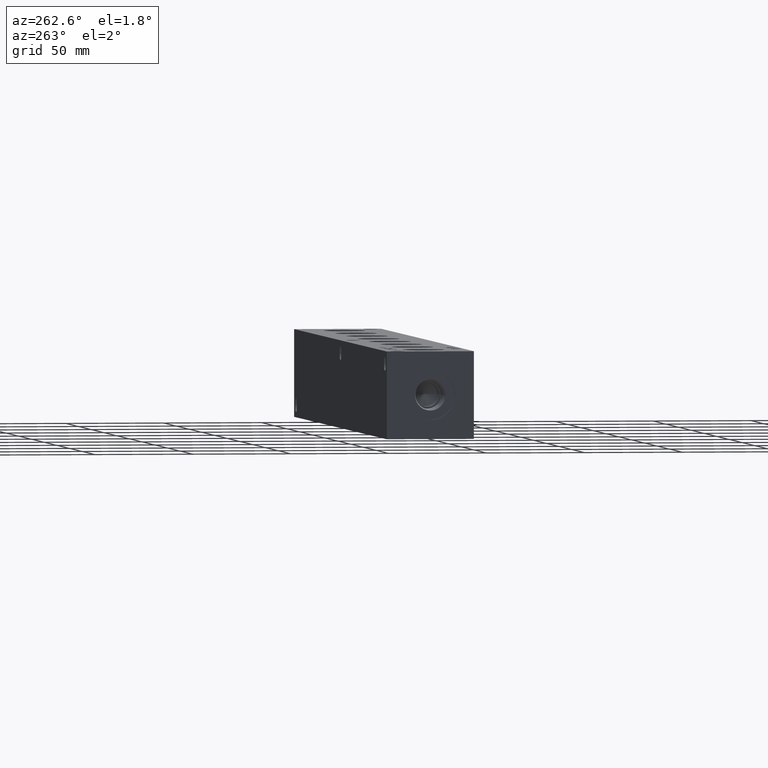
[diagram: clean part render]
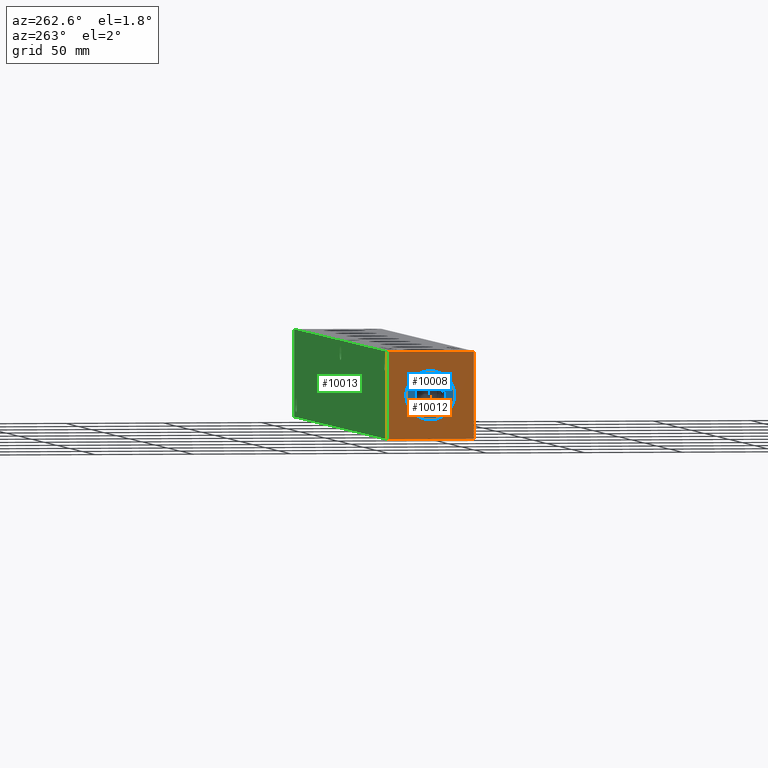
[diagram: same view with three faces highlighted in distinct colors, each labeled with its STEP entity id]
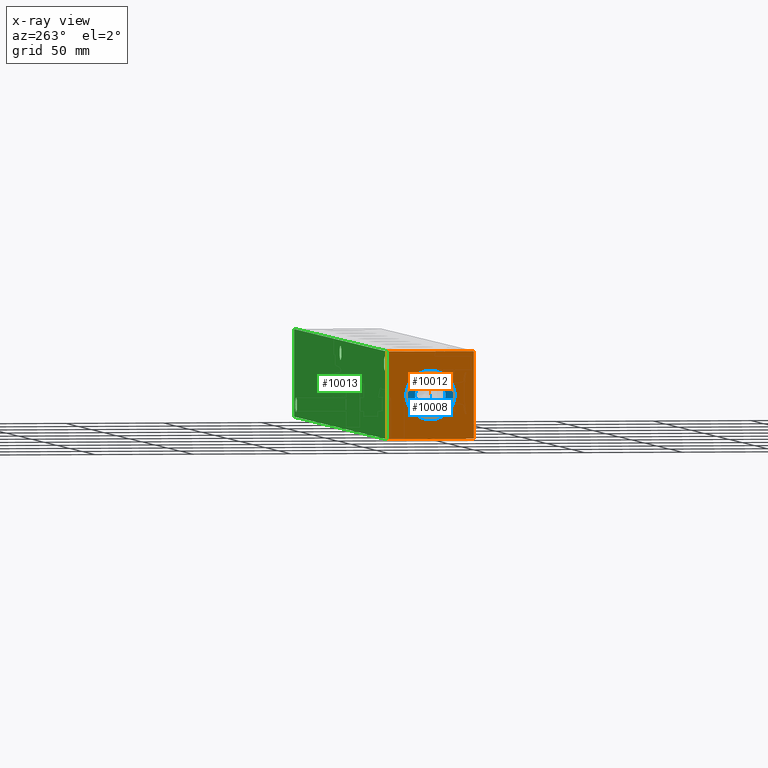
[diagram: x-ray of the same camera — body ghosted, the three highlighted faces saturated]
A machine part, auxiliary view with three faces highlighted in distinct colors.
The next image is the same camera in x-ray (body ghosted, the three faces saturated) — at least one of them is partly hidden behind the body in this view.
Their STEP definitions:

[orange] entity #10012 — the highlighted planar face has unit normal (-1, 0, 0).
#544=CIRCLE('',#10799,12.5095);
#545=CIRCLE('',#10800,12.5095);
#631=FACE_BOUND('',#2027,.T.);
#891=PLANE('',#10813);
#1420=FACE_OUTER_BOUND('',#2026,.T.);
#2026=EDGE_LOOP('',(#9019,#9020,#9021,#9022));
#2027=EDGE_LOOP('',(#9023,#9024));
#2312=LINE('',#15483,#3131);
#2862=LINE('',#17510,#3681);
#2863=LINE('',#17511,#3682);
#2864=LINE('',#17512,#3683);
#3131=VECTOR('',#11208,10.);
#3681=VECTOR('',#13196,10.);
#3682=VECTOR('',#13197,10.);
#3683=VECTOR('',#13198,10.);
#4217=VERTEX_POINT('',#15476);
#4220=VERTEX_POINT('',#15481);
#4839=VERTEX_POINT('',#17479);
#4840=VERTEX_POINT('',#17480);
#4849=VERTEX_POINT('',#17508);
#4850=VERTEX_POINT('',#17509);
#5318=EDGE_CURVE('',#4220,#4217,#2312,.T.);
#6238=EDGE_CURVE('',#4839,#4840,#544,.T.);
#6239=EDGE_CURVE('',#4840,#4839,#545,.T.);
#6252=EDGE_CURVE('',#4849,#4850,#2862,.T.);
#6253=EDGE_CURVE('',#4850,#4217,#2863,.T.);
#6254=EDGE_CURVE('',#4849,#4220,#2864,.T.);
#9019=ORIENTED_EDGE('',*,*,#6252,.T.);
#9020=ORIENTED_EDGE('',*,*,#6253,.T.);
#9021=ORIENTED_EDGE('',*,*,#5318,.F.);
#9022=ORIENTED_EDGE('',*,*,#6254,.F.);
#9023=ORIENTED_EDGE('',*,*,#6238,.T.);
#9024=ORIENTED_EDGE('',*,*,#6239,.T.);
#10012=ADVANCED_FACE('',(#1420,#631),#891,.T.);
#10799=AXIS2_PLACEMENT_3D('',#17481,#13162,#13163);
#10800=AXIS2_PLACEMENT_3D('',#17482,#13164,#13165);
#10813=AXIS2_PLACEMENT_3D('',#17507,#13194,#13195);
#11208=DIRECTION('',(0.,-1.,0.));
#13162=DIRECTION('center_axis',(1.,0.,0.));
#13163=DIRECTION('ref_axis',(0.,0.,1.));
#13164=DIRECTION('center_axis',(1.,0.,0.));
#13165=DIRECTION('ref_axis',(0.,0.,1.));
#13194=DIRECTION('center_axis',(-1.,0.,0.));
#13195=DIRECTION('ref_axis',(0.,-1.,0.));
#13196=DIRECTION('',(0.,-1.,0.));
#13197=DIRECTION('',(0.,0.,1.));
#13198=DIRECTION('',(0.,0.,1.));
#15476=CARTESIAN_POINT('',(0.,0.,44.45));
#15481=CARTESIAN_POINT('',(0.,44.45,44.45));
#15483=CARTESIAN_POINT('',(0.,44.45,44.45));
#17479=CARTESIAN_POINT('',(0.,22.225,34.7345));
#17480=CARTESIAN_POINT('',(0.,22.225,9.7155));
#17481=CARTESIAN_POINT('Origin',(0.,22.225,22.225));
#17482=CARTESIAN_POINT('Origin',(0.,22.225,22.225));
#17507=CARTESIAN_POINT('Origin',(0.,44.45,0.));
#17508=CARTESIAN_POINT('',(0.,44.45,0.));
#17509=CARTESIAN_POINT('',(0.,0.,0.));
#17510=CARTESIAN_POINT('',(0.,44.45,0.));
#17511=CARTESIAN_POINT('',(0.,0.,0.));
#17512=CARTESIAN_POINT('',(0.,44.45,0.));

[blue] entity #10008 — the highlighted planar face has unit normal (1, 0, 0).
#546=CIRCLE('',#10801,12.5095);
#547=CIRCLE('',#10802,12.5095);
#548=CIRCLE('',#10804,7.7978);
#549=CIRCLE('',#10805,7.7978);
#630=FACE_BOUND('',#2022,.T.);
#890=PLANE('',#10803);
#1416=FACE_OUTER_BOUND('',#2021,.T.);
#2021=EDGE_LOOP('',(#8997,#8998));
#2022=EDGE_LOOP('',(#8999,#9000));
#4841=VERTEX_POINT('',#17483);
#4842=VERTEX_POINT('',#17485);
#4843=VERTEX_POINT('',#17489);
#4844=VERTEX_POINT('',#17490);
#6241=EDGE_CURVE('',#4841,#4842,#546,.T.);
#6242=EDGE_CURVE('',#4842,#4841,#547,.T.);
#6243=EDGE_CURVE('',#4843,#4844,#548,.T.);
#6244=EDGE_CURVE('',#4844,#4843,#549,.T.);
#8997=ORIENTED_EDGE('',*,*,#6242,.F.);
#8998=ORIENTED_EDGE('',*,*,#6241,.F.);
#8999=ORIENTED_EDGE('',*,*,#6243,.T.);
#9000=ORIENTED_EDGE('',*,*,#6244,.T.);
#10008=ADVANCED_FACE('',(#1416,#630),#890,.F.);
#10801=AXIS2_PLACEMENT_3D('',#17486,#13167,#13168);
#10802=AXIS2_PLACEMENT_3D('',#17487,#13169,#13170);
#10803=AXIS2_PLACEMENT_3D('',#17488,#13171,#13172);
#10804=AXIS2_PLACEMENT_3D('',#17491,#13173,#13174);
#10805=AXIS2_PLACEMENT_3D('',#17492,#13175,#13176);
#13167=DIRECTION('center_axis',(1.,0.,0.));
#13168=DIRECTION('ref_axis',(0.,0.,-1.));
#13169=DIRECTION('center_axis',(1.,0.,0.));
#13170=DIRECTION('ref_axis',(0.,0.,-1.));
#13171=DIRECTION('center_axis',(1.,0.,0.));
#13172=DIRECTION('ref_axis',(0.,0.,-1.));
#13173=DIRECTION('center_axis',(1.,0.,0.));
#13174=DIRECTION('ref_axis',(0.,0.,-1.));
#13175=DIRECTION('center_axis',(1.,0.,0.));
#13176=DIRECTION('ref_axis',(0.,0.,-1.));
#17483=CARTESIAN_POINT('',(0.7874,22.225,9.7155));
#17485=CARTESIAN_POINT('',(0.7874,22.225,34.7345));
#17486=CARTESIAN_POINT('Origin',(0.7874,22.225,22.225));
#17487=CARTESIAN_POINT('Origin',(0.7874,22.225,22.225));
#17488=CARTESIAN_POINT('Origin',(0.7874,22.225,30.0228));
#17489=CARTESIAN_POINT('',(0.7874,22.225,30.0228));
#17490=CARTESIAN_POINT('',(0.787400000000001,22.225,14.4272));
#17491=CARTESIAN_POINT('Origin',(0.7874,22.225,22.225));
#17492=CARTESIAN_POINT('Origin',(0.7874,22.225,22.225));

[green] entity #10013 — the highlighted planar face has unit normal (0, 1, 0).
#271=CIRCLE('',#10267,3.5687);
#274=CIRCLE('',#10277,3.5687);
#277=CIRCLE('',#10286,3.5687);
#632=FACE_BOUND('',#2029,.T.);
#633=FACE_BOUND('',#2030,.T.);
#634=FACE_BOUND('',#2031,.T.);
#892=PLANE('',#10814);
#1421=FACE_OUTER_BOUND('',#2028,.T.);
#2028=EDGE_LOOP('',(#9025,#9026,#9027,#9028));
#2029=EDGE_LOOP('',(#9029));
#2030=EDGE_LOOP('',(#9030));
#2031=EDGE_LOOP('',(#9031));
#2311=LINE('',#15482,#3130);
#2864=LINE('',#17512,#3683);
#2865=LINE('',#17515,#3684);
#2866=LINE('',#17516,#3685);
#3130=VECTOR('',#11207,10.);
#3683=VECTOR('',#13198,10.);
#3684=VECTOR('',#13201,10.);
#3685=VECTOR('',#13202,10.);
#4219=VERTEX_POINT('',#15479);
#4220=VERTEX_POINT('',#15481);
#4509=VERTEX_POINT('',#16450);
#4514=VERTEX_POINT('',#16468);
#4519=VERTEX_POINT('',#16484);
#4849=VERTEX_POINT('',#17508);
#4851=VERTEX_POINT('',#17514);
#5317=EDGE_CURVE('',#4219,#4220,#2311,.T.);
#5742=EDGE_CURVE('',#4509,#4509,#271,.T.);
#5752=EDGE_CURVE('',#4514,#4514,#274,.T.);
#5761=EDGE_CURVE('',#4519,#4519,#277,.T.);
#6254=EDGE_CURVE('',#4849,#4220,#2864,.T.);
#6255=EDGE_CURVE('',#4851,#4849,#2865,.T.);
#6256=EDGE_CURVE('',#4851,#4219,#2866,.T.);
#9025=ORIENTED_EDGE('',*,*,#6255,.T.);
#9026=ORIENTED_EDGE('',*,*,#6254,.T.);
#9027=ORIENTED_EDGE('',*,*,#5317,.F.);
#9028=ORIENTED_EDGE('',*,*,#6256,.F.);
#9029=ORIENTED_EDGE('',*,*,#5742,.T.);
#9030=ORIENTED_EDGE('',*,*,#5752,.T.);
#9031=ORIENTED_EDGE('',*,*,#5761,.T.);
#10013=ADVANCED_FACE('',(#1421,#632,#633,#634),#892,.T.);
#10267=AXIS2_PLACEMENT_3D('',#16452,#11932,#11933);
#10277=AXIS2_PLACEMENT_3D('',#16470,#11955,#11956);
#10286=AXIS2_PLACEMENT_3D('',#16486,#11975,#11976);
#10814=AXIS2_PLACEMENT_3D('',#17513,#13199,#13200);
#11207=DIRECTION('',(-1.,0.,0.));
#11932=DIRECTION('center_axis',(0.,-1.,0.));
#11933=DIRECTION('ref_axis',(1.,0.,0.));
#11955=DIRECTION('center_axis',(0.,-1.,0.));
#11956=DIRECTION('ref_axis',(1.,0.,0.));
#11975=DIRECTION('center_axis',(0.,-1.,0.));
#11976=DIRECTION('ref_axis',(1.,0.,0.));
#13198=DIRECTION('',(0.,0.,1.));
#13199=DIRECTION('center_axis',(0.,1.,0.));
#13200=DIRECTION('ref_axis',(-1.,0.,0.));
#13201=DIRECTION('',(-1.,0.,0.));
#13202=DIRECTION('',(0.,0.,1.));
#15479=CARTESIAN_POINT('',(365.125,44.45,44.45));
#15481=CARTESIAN_POINT('',(0.,44.45,44.45));
#15482=CARTESIAN_POINT('',(365.125,44.45,44.45));
#16450=CARTESIAN_POINT('',(353.6061,44.45,6.35));
#16452=CARTESIAN_POINT('Origin',(357.1748,44.45,6.35));
#16468=CARTESIAN_POINT('',(4.3561,44.45,38.1));
#16470=CARTESIAN_POINT('Origin',(7.9248,44.45,38.1));
#16484=CARTESIAN_POINT('',(179.0065,44.45,38.1));
#16486=CARTESIAN_POINT('Origin',(182.5752,44.45,38.1));
#17508=CARTESIAN_POINT('',(0.,44.45,0.));
#17512=CARTESIAN_POINT('',(0.,44.45,0.));
#17513=CARTESIAN_POINT('Origin',(365.125,44.45,0.));
#17514=CARTESIAN_POINT('',(365.125,44.45,0.));
#17515=CARTESIAN_POINT('',(365.125,44.45,0.));
#17516=CARTESIAN_POINT('',(365.125,44.45,0.));